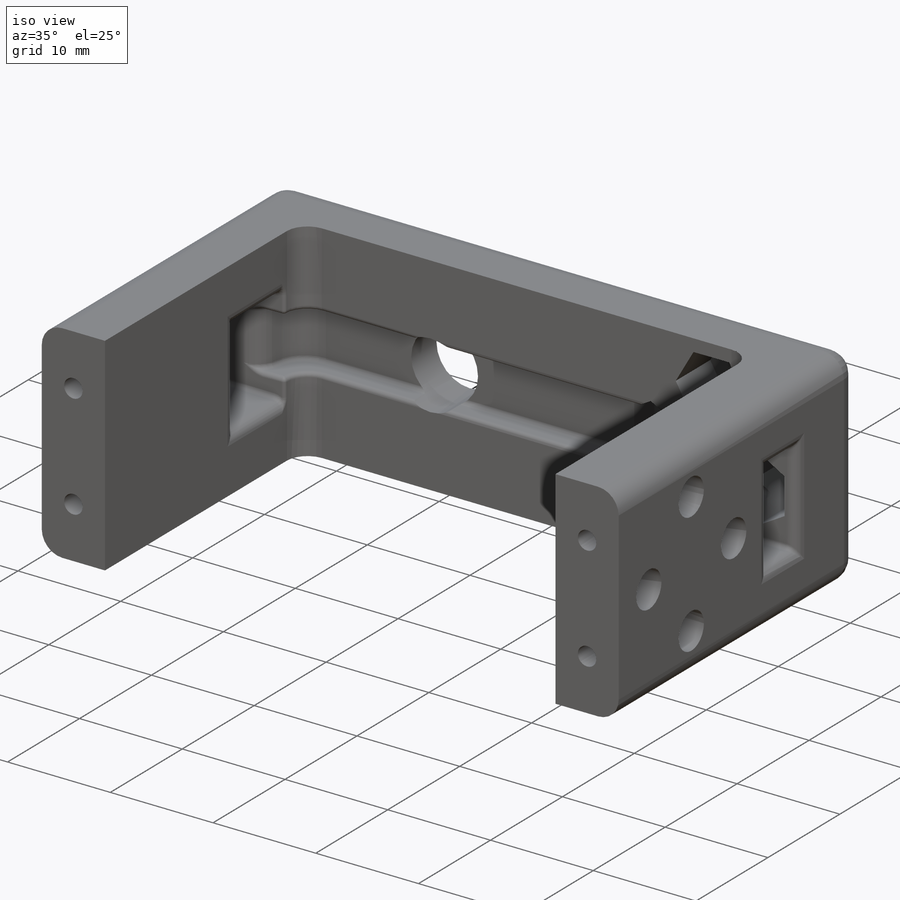
[diagram: iso view]
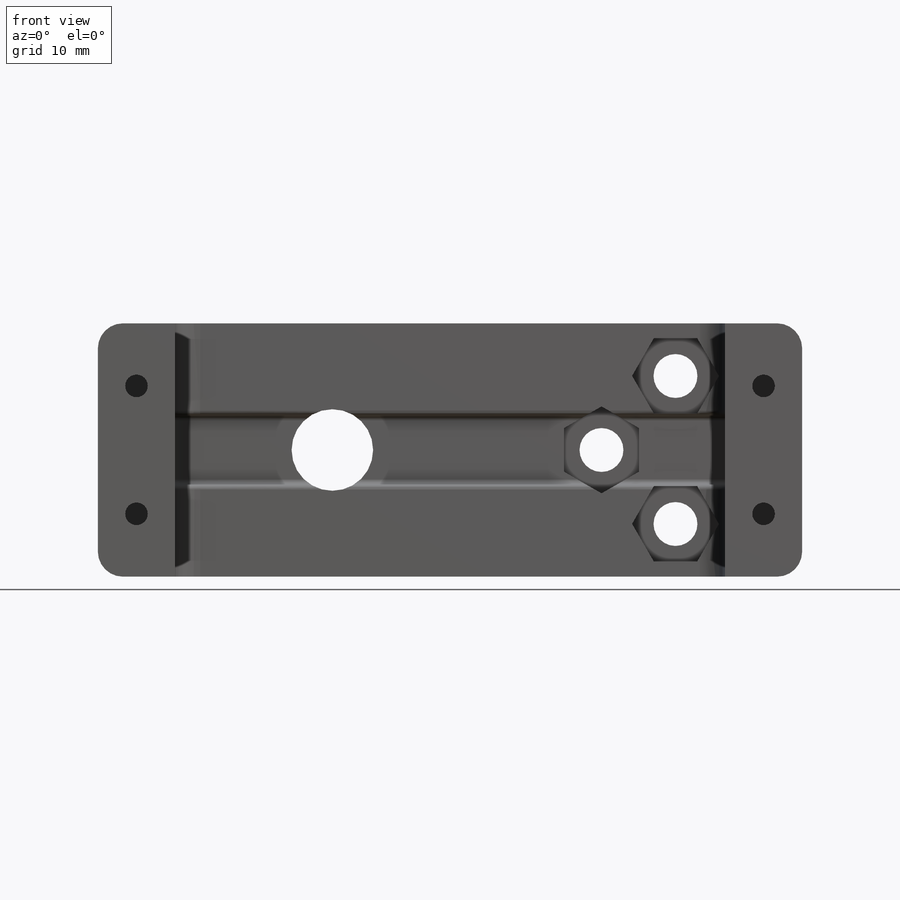
[diagram: front view]
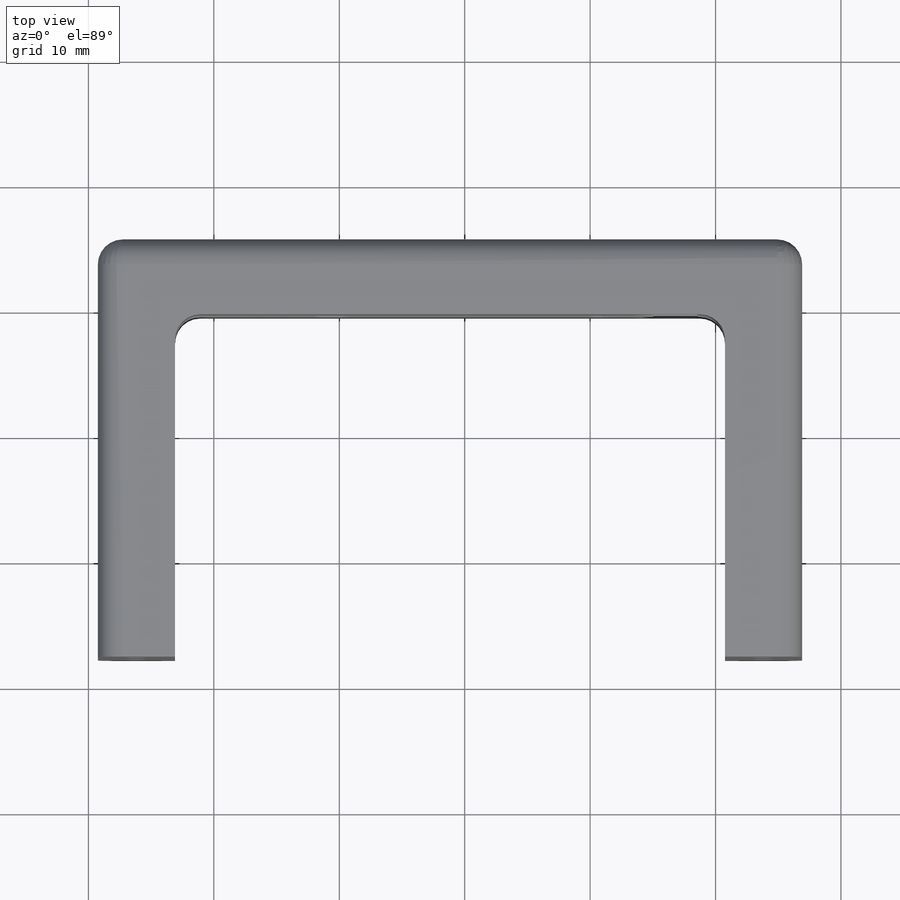
[diagram: top view]
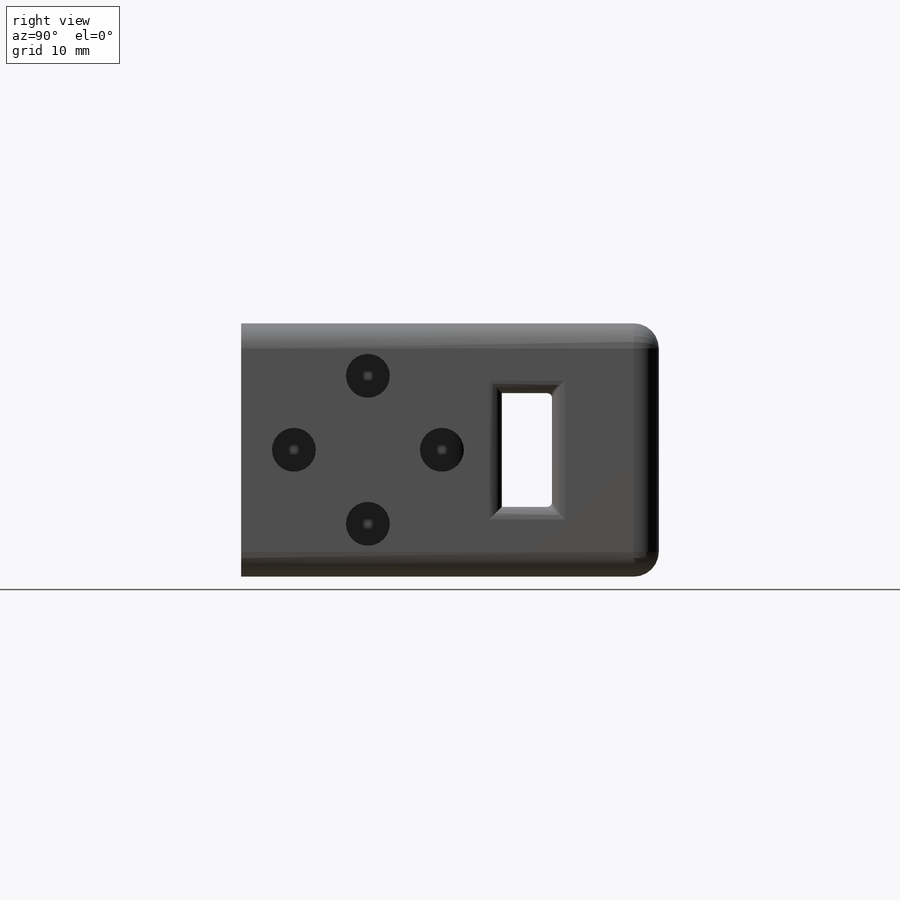
[diagram: right view]
SOLIDWORKS PART (.sldprt)
format: sldprt  version: not decoded by parser v0  size: 847,360 bytes
history: native  units: mm
features: sketch x14, cut_extrude x10, fillet x7, plane x4, extrude x3, material x1, cut_revolve x1, chamfer x1 (+10 scaffold rows collapsed)
feature tree (51):
  scaffold x10  (default folders/planes/origin — collapsed)
  material  "Материал <не указан>"
  plane  "Спереди"
  plane  "Сверху"
  plane  "Справа"
  sketch  "Эскиз2"  dims[c1.D1=1.8mm c1.D3=2.5mm c1.D4=2.5mm c1.D6=1.8mm c1.D2=3.0mm c2.D3=20.2mm c3.D3=~179.309812deg c4.D3=~47.554249mm c4.D4=~47.554249mm c4.D5=20.2mm c5.D5=~0.690188deg c6.D5=20.2mm c7.D5=~179.309812deg c8.D5=7.1mm c8.D3=3.0mm c9.D5=20.2mm c9.D2=0.6mm c9.D3=0.6mm c10.D2=10.2mm c10.D3=~6.154249mm c10.D4=~6.154249mm c10.D5=20.2mm c11.D3=20.2mm c11.D5=5.0mm c11.D6=~20.75043mm c11.D7=50.0mm]
  extrude  "Бобышка-Вытянуть1"  [1 undecoded]
  sketch  "Эскиз3"
  extrude  "Бобышка-Вытянуть2"  Depth=6mm
  sketch  "Эскиз4"  dims[D1=5.715mm D2=7.0mm D3=6.5mm]
  extrude  "axis"  Depth=6mm
  cut_extrude  "servo_screw"  [1 undecoded]
  sketch  "Эскиз2<3>"  dims[D1=14.0mm]
  fillet  "Скругление1"  Radius=2mm
  fillet  "Скругление2"  Radius=1mm
  sketch  "Эскиз5"  dims[c1.D2=3.5mm c1.D3=6.0mm c2.D2=3.5mm c2.D3=6.0mm c2.D1=5.9mm c2.D5=~3.214587mm c3.D1=5.9mm c3.D5=1.2mm c3.D4=4.0]
  cut_extrude  "Вырез-Вытянуть2"  Depth=4.5mm
  plane  "Плоскость1"
  cut_extrude  "Вырез-Вытянуть4"  [1 undecoded]
  sketch  "Эскиз5<5>"  dims[D1=4.8mm]
  cut_extrude  "Вырез-Вытянуть5"  [1 undecoded]
  sketch  "Эскиз5<6>"  dims[D1=3.0mm]
  sketch  "Эскиз6"
  cut_revolve  "Вырез-Повернуть1"  Angle=90deg
  sketch  "Эскиз7"  dims[c1.D2=3.5mm c1.D3=6.0mm c1.D1=16.2mm c2.D1=90.0deg c3.D1=20.0mm c3.D4=5.9mm c4.D1=1.2mm c4.D6=~3.175426mm c4.D5=4.0]
  cut_extrude  "Вырез-Вытянуть6"  Depth=10mm
  cut_extrude  "Вырез-Вытянуть7"  [1 undecoded]
  sketch  "Эскиз7<3>"  dims[D1=3.0mm]
  cut_extrude  "Вырез-Вытянуть8"  [1 undecoded]
  sketch  "Эскиз4<4>"
  sketch  "Эскиз8"  dims[c1.D1=4.5mm c1.D2=9.5mm c1.D3=18.0mm c2.D1=25.0mm]
  cut_extrude  "Вырез-Вытянуть9"  [1 undecoded]
  chamfer  "Фаска1"  Distance=0.5mm Angle=45deg
  sketch  "Эскиз9"  dims[D1=5.5mm D2=2.0mm]
  cut_extrude  "Вырез-Вытянуть10"  Depth=2mm
  sketch  "Эскиз10"  dims[D1=4.0mm]
  cut_extrude  "Вырез-Вытянуть11"  [1 undecoded]
  fillet  "Скругление7"  Radius=1mm
  fillet  "Скругление10"  Radius=3mm
  fillet  "Скругление11"  Radius=2mm
  fillet  "Скругление9"  Radius=0.4mm
  fillet  "Скругление12"  Radius=0.3mm
decode coverage: 25 of 36 modeling features carry decoded parameters
note: ~ marks probable driven/reference dimensions
note: 8 parameter values undecoded
summary: no parameter record found for 8 features
note: suppression state not decoded; provenance and decode notes live in map.json
